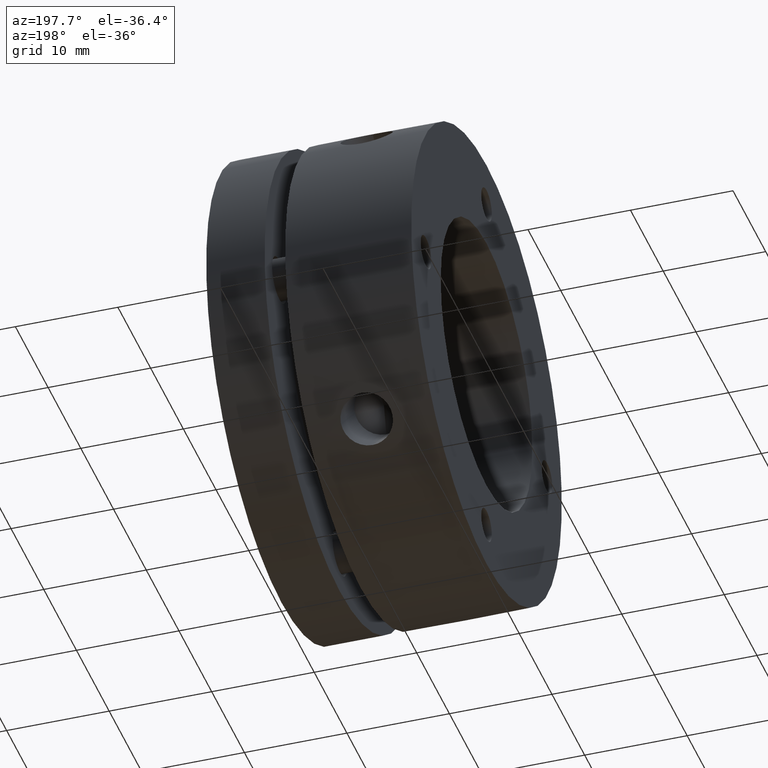
[diagram: clean part render]
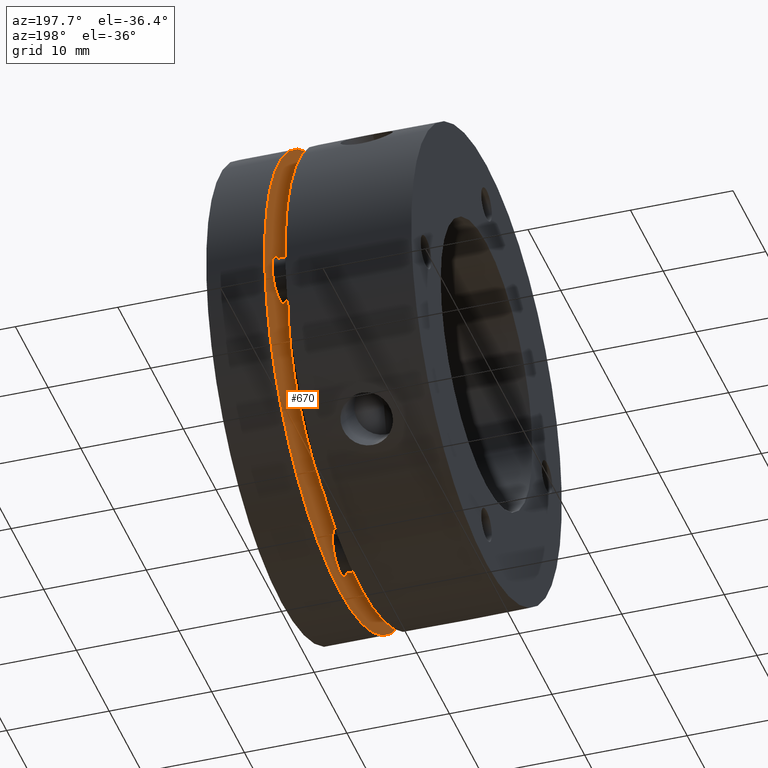
[diagram: same view with one face highlighted and labeled with its STEP entity id]
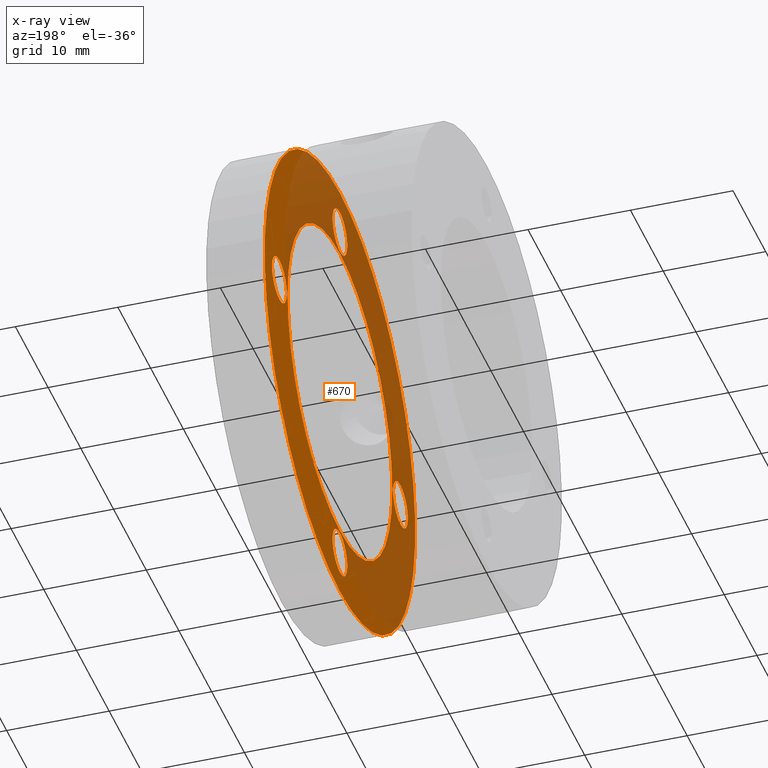
[diagram: x-ray of the same camera — body ghosted, the highlighted face saturated]
A machine part, auxiliary view. The second image highlights one B-rep face of the part: STEP entity #670.
The next image is the same camera in x-ray: the body ghosted, the highlighted face saturated — about 59% of this face is hidden behind the body in this view.
In plain terms, the highlighted planar face has unit normal (1, 0, 0).
Its self-contained STEP definition (entity closure, byte-faithful):
#48 = FACE_BOUND ( 'NONE', #1818, .T. ) ;
#49 = FACE_BOUND ( 'NONE', #1821, .T. ) ;
#50 = FACE_BOUND ( 'NONE', #1816, .T. ) ;
#51 = FACE_BOUND ( 'NONE', #1819, .T. ) ;
#52 = FACE_BOUND ( 'NONE', #1803, .T. ) ;
#53 = FACE_OUTER_BOUND ( 'NONE', #1817, .T. ) ;
#175 = CIRCLE ( 'NONE', #2298, 16.00000000000000000 ) ;
#209 = CIRCLE ( 'NONE', #2310, 2.250000000000001800 ) ;
#213 = CIRCLE ( 'NONE', #2312, 2.250000000000000400 ) ;
#215 = CIRCLE ( 'NONE', #2313, 2.250000000000001800 ) ;
#235 = CIRCLE ( 'NONE', #2319, 2.250000000000000400 ) ;
#243 = CIRCLE ( 'NONE', #2320, 23.00000000000000000 ) ;
#264 = CIRCLE ( 'NONE', #2274, 2.250000000000001800 ) ;
#278 = CIRCLE ( 'NONE', #2277, 2.250000000000001800 ) ;
#304 = CIRCLE ( 'NONE', #2280, 16.00000000000000000 ) ;
#311 = CIRCLE ( 'NONE', #1638, 23.00000000000000000 ) ;
#315 = CIRCLE ( 'NONE', #1637, 2.250000000000000400 ) ;
#338 = CIRCLE ( 'NONE', #2287, 2.250000000000000400 ) ;
#670 = ADVANCED_FACE ( 'NONE', ( #48, #52, #49, #51, #50, #53 ), #3090, .F. ) ;
#819 = CARTESIAN_POINT ( 'NONE',  ( 14.29999999999999900, 0.0000000000000000000, 18.50000000000001100 ) ) ;
#820 = DIRECTION ( 'NONE',  ( -1.000000000000000000, -0.0000000000000000000, -0.0000000000000000000 ) ) ;
#821 = DIRECTION ( 'NONE',  ( 0.0000000000000000000, 0.0000000000000000000, -1.000000000000000000 ) ) ;
#836 = CARTESIAN_POINT ( 'NONE',  ( 14.29999999999999900, -2.265597000000000100E-015, -18.50000000000001100 ) ) ;
#837 = DIRECTION ( 'NONE',  ( -1.000000000000000000, -0.0000000000000000000, -0.0000000000000000000 ) ) ;
#838 = DIRECTION ( 'NONE',  ( 0.0000000000000000000, 0.0000000000000000000, -1.000000000000000000 ) ) ;
#852 = CARTESIAN_POINT ( 'NONE',  ( 14.29999999999999900, 0.0000000000000000000, 0.0000000000000000000 ) ) ;
#853 = DIRECTION ( 'NONE',  ( -1.000000000000000000, 0.0000000000000000000, 0.0000000000000000000 ) ) ;
#854 = DIRECTION ( 'NONE',  ( 0.0000000000000000000, 0.0000000000000000000, 1.000000000000000000 ) ) ;
#889 = CARTESIAN_POINT ( 'NONE',  ( 14.29999999999999900, -18.50000000000001100, 1.132798000000000200E-015 ) ) ;
#890 = DIRECTION ( 'NONE',  ( -1.000000000000000000, -0.0000000000000000000, -0.0000000000000000000 ) ) ;
#891 = DIRECTION ( 'NONE',  ( 0.0000000000000000000, 0.0000000000000000000, -1.000000000000000000 ) ) ;
#945 = CARTESIAN_POINT ( 'NONE',  ( 14.29999999999999900, 0.0000000000000000000, 0.0000000000000000000 ) ) ;
#946 = DIRECTION ( 'NONE',  ( -1.000000000000000000, 0.0000000000000000000, 0.0000000000000000000 ) ) ;
#947 = DIRECTION ( 'NONE',  ( 0.0000000000000000000, 0.0000000000000000000, 1.000000000000000000 ) ) ;
#985 = CARTESIAN_POINT ( 'NONE',  ( 14.29999999999999900, 0.0000000000000000000, 18.50000000000001100 ) ) ;
#986 = DIRECTION ( 'NONE',  ( -1.000000000000000000, -0.0000000000000000000, -0.0000000000000000000 ) ) ;
#987 = DIRECTION ( 'NONE',  ( 0.0000000000000000000, 0.0000000000000000000, -1.000000000000000000 ) ) ;
#992 = CARTESIAN_POINT ( 'NONE',  ( 14.29999999999999900, -18.50000000000001100, 1.132798000000000200E-015 ) ) ;
#993 = DIRECTION ( 'NONE',  ( -1.000000000000000000, -0.0000000000000000000, -0.0000000000000000000 ) ) ;
#994 = DIRECTION ( 'NONE',  ( 0.0000000000000000000, 0.0000000000000000000, -1.000000000000000000 ) ) ;
#995 = CARTESIAN_POINT ( 'NONE',  ( 14.29999999999999900, -2.265597000000000100E-015, -18.50000000000001100 ) ) ;
#996 = DIRECTION ( 'NONE',  ( -1.000000000000000000, -0.0000000000000000000, -0.0000000000000000000 ) ) ;
#997 = DIRECTION ( 'NONE',  ( 0.0000000000000000000, 0.0000000000000000000, -1.000000000000000000 ) ) ;
#1020 = CARTESIAN_POINT ( 'NONE',  ( 14.29999999999999900, 18.50000000000001100, -3.398395000000000300E-015 ) ) ;
#1021 = DIRECTION ( 'NONE',  ( -1.000000000000000000, -0.0000000000000000000, -0.0000000000000000000 ) ) ;
#1022 = DIRECTION ( 'NONE',  ( 0.0000000000000000000, 0.0000000000000000000, -1.000000000000000000 ) ) ;
#1023 = CARTESIAN_POINT ( 'NONE',  ( 14.29999999999999900, 0.0000000000000000000, 0.0000000000000000000 ) ) ;
#1024 = DIRECTION ( 'NONE',  ( 1.000000000000000000, 0.0000000000000000000, 0.0000000000000000000 ) ) ;
#1025 = DIRECTION ( 'NONE',  ( 0.0000000000000000000, 0.0000000000000000000, -1.000000000000000000 ) ) ;
#1146 = CARTESIAN_POINT ( 'NONE',  ( 14.29999999999999900, 18.50000000000001100, -3.398395000000000300E-015 ) ) ;
#1147 = DIRECTION ( 'NONE',  ( -1.000000000000000000, -0.0000000000000000000, -0.0000000000000000000 ) ) ;
#1148 = DIRECTION ( 'NONE',  ( 0.0000000000000000000, 0.0000000000000000000, -1.000000000000000000 ) ) ;
#1149 = CARTESIAN_POINT ( 'NONE',  ( 14.29999999999999900, 0.0000000000000000000, 0.0000000000000000000 ) ) ;
#1150 = DIRECTION ( 'NONE',  ( 1.000000000000000000, 0.0000000000000000000, 0.0000000000000000000 ) ) ;
#1151 = DIRECTION ( 'NONE',  ( 0.0000000000000000000, 0.0000000000000000000, -1.000000000000000000 ) ) ;
#1430 = ORIENTED_EDGE ( 'NONE', *, *, #2327, .F. ) ;
#1434 = ORIENTED_EDGE ( 'NONE', *, *, #2378, .F. ) ;
#1435 = ORIENTED_EDGE ( 'NONE', *, *, #2340, .F. ) ;
#1555 = VERTEX_POINT ( 'NONE', #3433 ) ;
#1566 = VERTEX_POINT ( 'NONE', #3442 ) ;
#1569 = VERTEX_POINT ( 'NONE', #3445 ) ;
#1578 = VERTEX_POINT ( 'NONE', #3454 ) ;
#1583 = VERTEX_POINT ( 'NONE', #3459 ) ;
#1590 = VERTEX_POINT ( 'NONE', #3466 ) ;
#1596 = VERTEX_POINT ( 'NONE', #3472 ) ;
#1614 = VERTEX_POINT ( 'NONE', #3490 ) ;
#1618 = VERTEX_POINT ( 'NONE', #3494 ) ;
#1620 = VERTEX_POINT ( 'NONE', #3496 ) ;
#1622 = VERTEX_POINT ( 'NONE', #3498 ) ;
#1623 = VERTEX_POINT ( 'NONE', #3499 ) ;
#1637 = AXIS2_PLACEMENT_3D ( 'NONE', #1146, #1147, #1148 ) ;
#1638 = AXIS2_PLACEMENT_3D ( 'NONE', #1149, #1150, #1151 ) ;
#1715 = ORIENTED_EDGE ( 'NONE', *, *, #2354, .F. ) ;
#1716 = ORIENTED_EDGE ( 'NONE', *, *, #2394, .F. ) ;
#1717 = ORIENTED_EDGE ( 'NONE', *, *, #2332, .F. ) ;
#1718 = ORIENTED_EDGE ( 'NONE', *, *, #2395, .F. ) ;
#1719 = ORIENTED_EDGE ( 'NONE', *, *, #2681, .F. ) ;
#1720 = ORIENTED_EDGE ( 'NONE', *, *, #2405, .F. ) ;
#1721 = ORIENTED_EDGE ( 'NONE', *, *, #2682, .F. ) ;
#1722 = ORIENTED_EDGE ( 'NONE', *, *, #2406, .F. ) ;
#1803 = EDGE_LOOP ( 'NONE', ( #1430, #2246 ) ) ;
#1816 = EDGE_LOOP ( 'NONE', ( #1719, #1720 ) ) ;
#1817 = EDGE_LOOP ( 'NONE', ( #1721, #1722 ) ) ;
#1818 = EDGE_LOOP ( 'NONE', ( #1435, #1434 ) ) ;
#1819 = EDGE_LOOP ( 'NONE', ( #1717, #1718 ) ) ;
#1821 = EDGE_LOOP ( 'NONE', ( #1715, #1716 ) ) ;
#2246 = ORIENTED_EDGE ( 'NONE', *, *, #2392, .F. ) ;
#2274 = AXIS2_PLACEMENT_3D ( 'NONE', #819, #820, #821 ) ;
#2277 = AXIS2_PLACEMENT_3D ( 'NONE', #836, #837, #838 ) ;
#2280 = AXIS2_PLACEMENT_3D ( 'NONE', #852, #853, #854 ) ;
#2287 = AXIS2_PLACEMENT_3D ( 'NONE', #889, #890, #891 ) ;
#2298 = AXIS2_PLACEMENT_3D ( 'NONE', #945, #946, #947 ) ;
#2310 = AXIS2_PLACEMENT_3D ( 'NONE', #985, #986, #987 ) ;
#2312 = AXIS2_PLACEMENT_3D ( 'NONE', #992, #993, #994 ) ;
#2313 = AXIS2_PLACEMENT_3D ( 'NONE', #995, #996, #997 ) ;
#2319 = AXIS2_PLACEMENT_3D ( 'NONE', #1020, #1021, #1022 ) ;
#2320 = AXIS2_PLACEMENT_3D ( 'NONE', #1023, #1024, #1025 ) ;
#2327 = EDGE_CURVE ( 'NONE', #1622, #1590, #264, .T. ) ;
#2332 = EDGE_CURVE ( 'NONE', #1614, #1583, #278, .T. ) ;
#2340 = EDGE_CURVE ( 'NONE', #1569, #1555, #304, .T. ) ;
#2354 = EDGE_CURVE ( 'NONE', #1623, #1618, #338, .T. ) ;
#2378 = EDGE_CURVE ( 'NONE', #1555, #1569, #175, .T. ) ;
#2392 = EDGE_CURVE ( 'NONE', #1590, #1622, #209, .T. ) ;
#2394 = EDGE_CURVE ( 'NONE', #1618, #1623, #213, .T. ) ;
#2395 = EDGE_CURVE ( 'NONE', #1583, #1614, #215, .T. ) ;
#2405 = EDGE_CURVE ( 'NONE', #1566, #1578, #235, .T. ) ;
#2406 = EDGE_CURVE ( 'NONE', #1620, #1596, #243, .T. ) ;
#2681 = EDGE_CURVE ( 'NONE', #1578, #1566, #315, .T. ) ;
#2682 = EDGE_CURVE ( 'NONE', #1596, #1620, #311, .T. ) ;
#2716 = AXIS2_PLACEMENT_3D ( 'NONE', #3091, #3086, #3093 ) ;
#3086 = DIRECTION ( 'NONE',  ( 1.000000000000000000, -0.0000000000000000000, 0.0000000000000000000 ) ) ;
#3090 = PLANE ( 'NONE',  #2716 ) ;
#3091 = CARTESIAN_POINT ( 'NONE',  ( 14.29999999999999900, 19.50000000000000400, 0.0000000000000000000 ) ) ;
#3093 = DIRECTION ( 'NONE',  ( 0.0000000000000000000, 0.0000000000000000000, -1.000000000000000000 ) ) ;
#3433 = CARTESIAN_POINT ( 'NONE',  ( 14.29999999999999900, 1.959434878635765100E-015, -16.00000000000000000 ) ) ;
#3442 = CARTESIAN_POINT ( 'NONE',  ( 14.29999999999999900, 18.50000000000001100, 2.249999999999996900 ) ) ;
#3445 = CARTESIAN_POINT ( 'NONE',  ( 14.29999999999999900, 0.0000000000000000000, 16.00000000000000000 ) ) ;
#3454 = CARTESIAN_POINT ( 'NONE',  ( 14.29999999999999900, 18.50000000000001100, -2.250000000000003600 ) ) ;
#3459 = CARTESIAN_POINT ( 'NONE',  ( 14.29999999999999900, -1.990051470191845600E-015, -16.25000000000000700 ) ) ;
#3466 = CARTESIAN_POINT ( 'NONE',  ( 14.29999999999999900, 2.755455298081542800E-016, 20.75000000000001100 ) ) ;
#3472 = CARTESIAN_POINT ( 'NONE',  ( 14.29999999999999900, 0.0000000000000000000, -23.00000000000000000 ) ) ;
#3490 = CARTESIAN_POINT ( 'NONE',  ( 14.29999999999999900, -2.265597000000000100E-015, -20.75000000000001100 ) ) ;
#3494 = CARTESIAN_POINT ( 'NONE',  ( 14.29999999999999900, -18.50000000000001100, 2.250000000000001800 ) ) ;
#3496 = CARTESIAN_POINT ( 'NONE',  ( 14.29999999999999900, 2.816687638038912400E-015, 23.00000000000000000 ) ) ;
#3498 = CARTESIAN_POINT ( 'NONE',  ( 14.29999999999999900, 0.0000000000000000000, 16.25000000000000700 ) ) ;
#3499 = CARTESIAN_POINT ( 'NONE',  ( 14.29999999999999900, -18.50000000000001100, -2.249999999999999100 ) ) ;